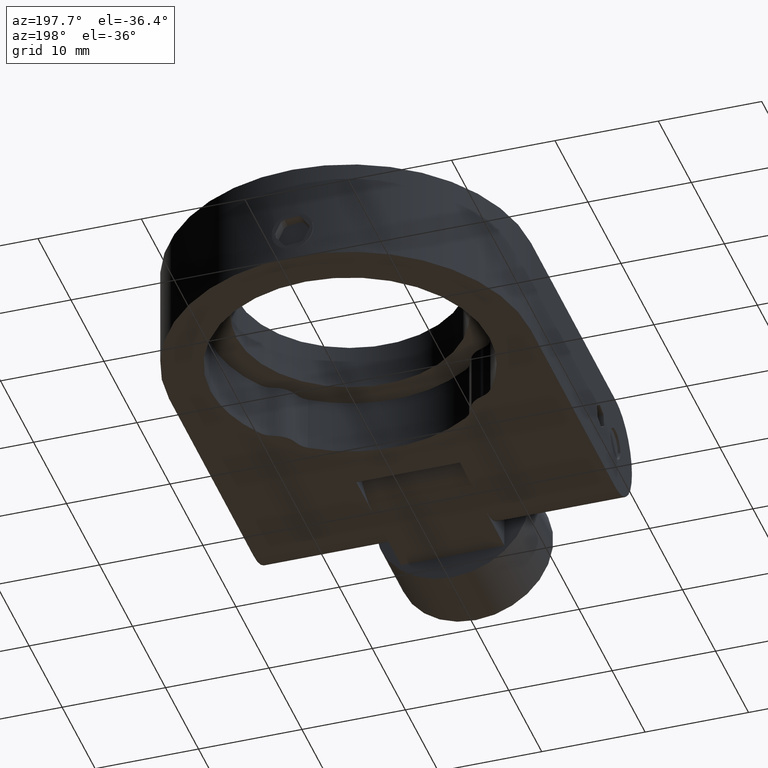
[diagram: clean part render]
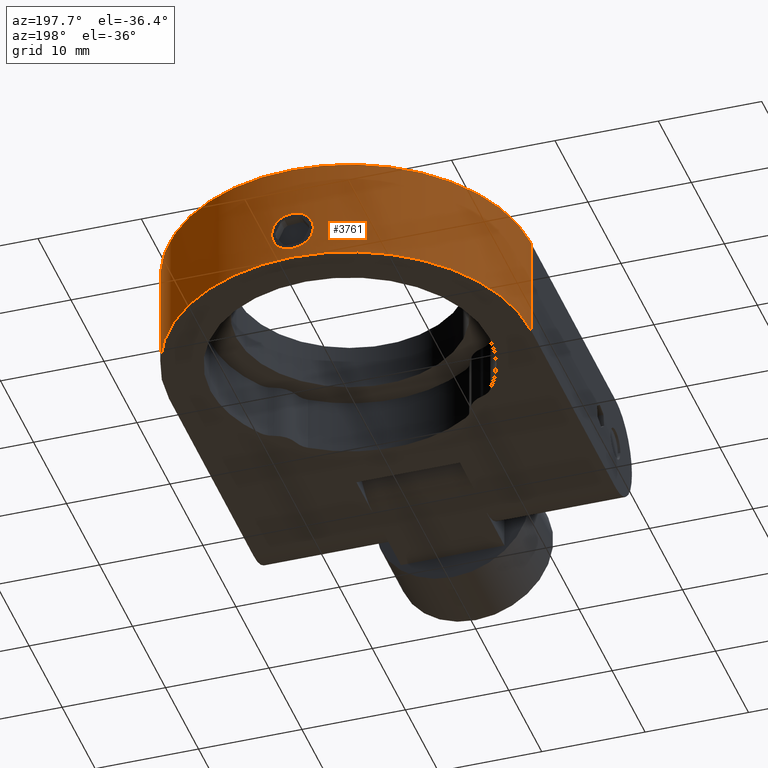
[diagram: same view with one face highlighted and labeled with its STEP entity id]
A machine part, auxiliary view. The second image highlights one B-rep face of the part: STEP entity #3761.
In plain terms, the highlighted cylindrical surface (partial cylindrical patch) has radius 17.5 mm, axis along (0, 0, 1).
Its self-contained STEP definition (entity closure, byte-faithful):
#104 = DIRECTION ( 'NONE',  ( 1.057139645054936500E-016, 1.718301073974566900E-032, 1.000000000000000000 ) ) ;
#177 = CARTESIAN_POINT ( 'NONE',  ( 1.243940680580507300, 55.55590359756332900, -0.9105138064969602300 ) ) ;
#201 = CARTESIAN_POINT ( 'NONE',  ( 1.431577407516354500, 55.54144990789576800, -1.172570826667576700 ) ) ;
#227 = CARTESIAN_POINT ( 'NONE',  ( 1.565948766116068900, 55.52984588805181000, -1.468963886583088700 ) ) ;
#346 = DIRECTION ( 'NONE',  ( -1.000000000000000000, 0.0000000000000000000, 9.912705577010326800E-017 ) ) ;
#372 = CARTESIAN_POINT ( 'NONE',  ( -17.50000000000000400, 38.09999999999999400, -4.999999999999995600 ) ) ;
#381 = CARTESIAN_POINT ( 'NONE',  ( -1.432690255232459000, 55.54135870572000000, -2.825537022005723200 ) ) ;
#385 = FACE_OUTER_BOUND ( 'NONE', #818, .T. ) ;
#468 = CARTESIAN_POINT ( 'NONE',  ( 0.5321469564195295800, 55.59219292581686000, -3.565572322129871600 ) ) ;
#508 = CARTESIAN_POINT ( 'NONE',  ( 1.319065241507898900, 55.55088275981698600, -3.014328555902511000 ) ) ;
#665 = EDGE_CURVE ( 'NONE', #2360, #3286, #1027, .T. ) ;
#727 = CARTESIAN_POINT ( 'NONE',  ( -1.565211479505585600, 55.52991237601676000, -1.466807180366233900 ) ) ;
#742 = CARTESIAN_POINT ( 'NONE',  ( -3.527898732679044000E-015, 55.59999999999999400, -0.3500000000000045300 ) ) ;
#781 = CARTESIAN_POINT ( 'NONE',  ( 0.8279081968503302400, 55.58063414402600700, -0.5687009139404403100 ) ) ;
#818 = EDGE_LOOP ( 'NONE', ( #2225, #3639, #3464, #3184 ) ) ;
#824 = CARTESIAN_POINT ( 'NONE',  ( 1.006036376957947500, 55.57128937560582200, -3.312256107920835500 ) ) ;
#953 = EDGE_CURVE ( 'NONE', #2360, #1501, #1339, .T. ) ;
#973 = EDGE_CURVE ( 'NONE', #1501, #1637, #1158, .T. ) ;
#989 = CARTESIAN_POINT ( 'NONE',  ( -1.013720085198445400, 55.57128044949460800, -0.6804776492782279600 ) ) ;
#1027 = LINE ( 'NONE', #372, #3676 ) ;
#1031 = CARTESIAN_POINT ( 'NONE',  ( -1.649915037179527700, 55.52204868485010500, -1.889745918019462700 ) ) ;
#1158 = LINE ( 'NONE', #1392, #1702 ) ;
#1262 = CARTESIAN_POINT ( 'NONE',  ( -1.939612815733919400E-015, 38.09999999999999400, 5.000000000000002700 ) ) ;
#1265 = CARTESIAN_POINT ( 'NONE',  ( -1.597660903955364000, 55.52693087969993300, -2.426076086375163600 ) ) ;
#1281 = CARTESIAN_POINT ( 'NONE',  ( -1.313145395344434800, 55.55076628803786300, -3.004869102334144500 ) ) ;
#1316 = ORIENTED_EDGE ( 'NONE', *, *, #2930, .T. ) ;
#1339 = CIRCLE ( 'NONE', #2763, 17.50000000000000000 ) ;
#1348 = CARTESIAN_POINT ( 'NONE',  ( -0.2181180835376129200, 55.60000000000000100, -3.649999999999990100 ) ) ;
#1392 = CARTESIAN_POINT ( 'NONE',  ( 17.49999999999999600, 38.09999999999999400, -4.999999999999999100 ) ) ;
#1438 = ORIENTED_EDGE ( 'NONE', *, *, #1530, .T. ) ;
#1501 = VERTEX_POINT ( 'NONE', #2860 ) ;
#1518 = VERTEX_POINT ( 'NONE', #1693 ) ;
#1526 = CARTESIAN_POINT ( 'NONE',  ( -2.996752460788856200E-015, 38.09999999999999400, -4.999999999999997300 ) ) ;
#1530 = EDGE_CURVE ( 'NONE', #1518, #3043, #2671, .T. ) ;
#1637 = VERTEX_POINT ( 'NONE', #2988 ) ;
#1649 = AXIS2_PLACEMENT_3D ( 'NONE', #1526, #2717, #3625 ) ;
#1654 = CARTESIAN_POINT ( 'NONE',  ( 0.5315551709051781200, 55.59221109948015300, -0.4342254221983260500 ) ) ;
#1664 = CARTESIAN_POINT ( 'NONE',  ( 1.090893303509632700, 55.56613186576855400, -3.242588299891080000 ) ) ;
#1693 = CARTESIAN_POINT ( 'NONE',  ( -5.705801625320627200E-015, 55.59999999999999400, -3.649999999999990100 ) ) ;
#1702 = VECTOR ( 'NONE', #1959, 1000.000000000000000 ) ;
#1822 = EDGE_CURVE ( 'NONE', #3286, #1637, #3080, .T. ) ;
#1884 = CARTESIAN_POINT ( 'NONE',  ( -1.639141912024452600, 55.52307838616436400, -1.782565714130203600 ) ) ;
#1926 = CARTESIAN_POINT ( 'NONE',  ( 1.089897451531314500, 55.56619828037494800, -0.7564196335650896800 ) ) ;
#1957 = CARTESIAN_POINT ( 'NONE',  ( 0.1090845190131780100, 55.60000000000000900, -3.649999999999990100 ) ) ;
#1959 = DIRECTION ( 'NONE',  ( 1.057139645054936500E-016, 1.718301073974566900E-032, 1.000000000000000000 ) ) ;
#1985 = CARTESIAN_POINT ( 'NONE',  ( 1.639293849687780500, 55.52306413595979300, -1.783524912386213100 ) ) ;
#2099 = DIRECTION ( 'NONE',  ( -1.057139645054936500E-016, -1.718301073974566900E-032, -1.000000000000000000 ) ) ;
#2138 = CARTESIAN_POINT ( 'NONE',  ( -1.650083971521573400, 55.52203268548552700, -2.107696236852010700 ) ) ;
#2158 = CARTESIAN_POINT ( 'NONE',  ( -1.431557207365659300, 55.54145225371723200, -1.172494226316127100 ) ) ;
#2225 = ORIENTED_EDGE ( 'NONE', *, *, #1822, .T. ) ;
#2252 = CARTESIAN_POINT ( 'NONE',  ( -3.527898732679044000E-015, 55.59999999999999400, -0.3500000000000045300 ) ) ;
#2255 = B_SPLINE_CURVE_WITH_KNOTS ( 'NONE', 3,
 ( #742, #3093, #2470, #3412, #989, #3066, #3391, #2158, #3710, #727, #3054, #1884, #1031, #2138, #3044, #1265, #3363, #2432, #381, #1281, #3666, #2461, #2773, #2519, #1348, #3480 ),
 .UNSPECIFIED., .F., .F.,
 ( 4, 2, 2, 2, 2, 2, 2, 2, 2, 2, 2, 2, 4 ),
 ( 0.005161517069969656800, 0.005806556016394518600, 0.006451594962819381200, 0.006774114436031812600, 0.007096633909244243000, 0.007419153382456673500, 0.007741672855669104800, 0.008064192328881536100, 0.008386711802093967500, 0.008709231275306400500, 0.009031750748518831800, 0.009676789694943692700, 0.01032182864136855500 ),
 .UNSPECIFIED. ) ;
#2266 = CARTESIAN_POINT ( 'NONE',  ( 0.7319538721802679700, 55.58497175480203400, -3.482713933314852500 ) ) ;
#2270 = DIRECTION ( 'NONE',  ( -1.057139645054936500E-016, -1.718301073974566900E-032, -1.000000000000000000 ) ) ;
#2282 = CARTESIAN_POINT ( 'NONE',  ( 1.483241079144064200, 55.53707885858397500, -1.269116429933650600 ) ) ;
#2360 = VERTEX_POINT ( 'NONE', #3319 ) ;
#2432 = CARTESIAN_POINT ( 'NONE',  ( -1.483306548592902700, 55.53707329836148400, -2.730756370299292100 ) ) ;
#2461 = CARTESIAN_POINT ( 'NONE',  ( -1.015503353934396900, 55.57117544664302500, -3.318160825342012700 ) ) ;
#2469 = AXIS2_PLACEMENT_3D ( 'NONE', #1262, #2099, #346 ) ;
#2470 = CARTESIAN_POINT ( 'NONE',  ( -0.4325380471093160900, 55.59578216589525800, -0.3932642807110042200 ) ) ;
#2519 = CARTESIAN_POINT ( 'NONE',  ( -0.4348180556215017800, 55.59572395992190500, -3.606115194177698800 ) ) ;
#2523 = CARTESIAN_POINT ( 'NONE',  ( 1.006570744557258000, 55.57125689227602500, -0.6881827900319563700 ) ) ;
#2526 = FACE_BOUND ( 'NONE', #3258, .T. ) ;
#2555 = DIRECTION ( 'NONE',  ( -1.000000000000000000, 0.0000000000000000000, 9.912705577010326800E-017 ) ) ;
#2578 = CARTESIAN_POINT ( 'NONE',  ( 0.4286877478790487900, 55.59506844082742600, -0.4030148585174810900 ) ) ;
#2671 = B_SPLINE_CURVE_WITH_KNOTS ( 'NONE', 3,
 ( #3786, #1957, #3483, #3493, #468, #2266, #2892, #824, #1664, #508, #3749, #3179, #3802, #3191, #1985, #2843, #227, #2282, #201, #3758, #177, #1926, #2523, #781, #3162, #1654, #2578, #2874, #2833, #2252 ),
 .UNSPECIFIED., .F., .F.,
 ( 4, 2, 2, 2, 2, 2, 2, 2, 2, 2, 2, 2, 2, 2, 4 ),
 ( 7.063985980601647900E-021, 0.0003225948168731046900, 0.0006451896337462093800, 0.0009677844506193140700, 0.001290379267492418500, 0.001935568901238626000, 0.002580758534984833200, 0.002903353351857936500, 0.003225948168731039300, 0.003548542985604142600, 0.003871137802477245400, 0.004193732619350348300, 0.004516327436223451100, 0.004838922253096554800, 0.005161517069969656800 ),
 .UNSPECIFIED. ) ;
#2717 = DIRECTION ( 'NONE',  ( 1.057139645054936500E-016, 1.718301073974566900E-032, 1.000000000000000000 ) ) ;
#2763 = AXIS2_PLACEMENT_3D ( 'NONE', #3193, #2270, #2555 ) ;
#2773 = CARTESIAN_POINT ( 'NONE',  ( -0.8316656489510112500, 55.58135452050655800, -3.441181809078170500 ) ) ;
#2830 = CARTESIAN_POINT ( 'NONE',  ( -3.527898732679044000E-015, 55.59999999999999400, -0.3500000000000045300 ) ) ;
#2833 = CARTESIAN_POINT ( 'NONE',  ( 0.1077170777941826300, 55.59999999999999400, -0.3500000000000044200 ) ) ;
#2843 = CARTESIAN_POINT ( 'NONE',  ( 1.597133255532377600, 55.52697947366280600, -1.571851482246954500 ) ) ;
#2860 = CARTESIAN_POINT ( 'NONE',  ( 17.49999999999999600, 38.09999999999999400, -4.999999999999999100 ) ) ;
#2874 = CARTESIAN_POINT ( 'NONE',  ( 0.2171304411272194600, 55.59897275002032300, -0.3607961997257777600 ) ) ;
#2892 = CARTESIAN_POINT ( 'NONE',  ( 0.8267094926511366900, 55.58069257931959600, -3.432018400474906800 ) ) ;
#2930 = EDGE_CURVE ( 'NONE', #3043, #1518, #2255, .T. ) ;
#2988 = CARTESIAN_POINT ( 'NONE',  ( 17.49999999999999600, 38.09999999999999400, 5.000000000000000900 ) ) ;
#3043 = VERTEX_POINT ( 'NONE', #2830 ) ;
#3044 = CARTESIAN_POINT ( 'NONE',  ( -1.639445297957021100, 55.52304965741857500, -2.215128590417137800 ) ) ;
#3054 = CARTESIAN_POINT ( 'NONE',  ( -1.597054405986774200, 55.52698665525688400, -1.571653060306111600 ) ) ;
#3066 = CARTESIAN_POINT ( 'NONE',  ( -1.242024176549120000, 55.55603601004175800, -0.9084676568398274400 ) ) ;
#3080 = CIRCLE ( 'NONE', #2469, 17.50000000000000000 ) ;
#3093 = CARTESIAN_POINT ( 'NONE',  ( -0.2153838398453226400, 55.60000000000000900, -0.3500000000000045300 ) ) ;
#3116 = CARTESIAN_POINT ( 'NONE',  ( -17.50000000000000400, 38.09999999999999400, 5.000000000000004400 ) ) ;
#3127 = CYLINDRICAL_SURFACE ( 'NONE', #1649, 17.50000000000000000 ) ;
#3162 = CARTESIAN_POINT ( 'NONE',  ( 0.7314253992292828500, 55.58499405015212600, -0.5170240010140669800 ) ) ;
#3179 = CARTESIAN_POINT ( 'NONE',  ( 1.606555768380448600, 55.52629628530832700, -2.433210753019816200 ) ) ;
#3184 = ORIENTED_EDGE ( 'NONE', *, *, #665, .T. ) ;
#3191 = CARTESIAN_POINT ( 'NONE',  ( 1.650038874172630600, 55.52203695654592500, -1.892911970868019300 ) ) ;
#3193 = CARTESIAN_POINT ( 'NONE',  ( -2.996752460788856200E-015, 38.09999999999999400, -4.999999999999997300 ) ) ;
#3258 = EDGE_LOOP ( 'NONE', ( #1438, #1316 ) ) ;
#3286 = VERTEX_POINT ( 'NONE', #3116 ) ;
#3319 = CARTESIAN_POINT ( 'NONE',  ( -17.50000000000000400, 38.09999999999999400, -4.999999999999995600 ) ) ;
#3363 = CARTESIAN_POINT ( 'NONE',  ( -1.566021650540456700, 55.52983934864486300, -2.530828955380290100 ) ) ;
#3391 = CARTESIAN_POINT ( 'NONE',  ( -1.311714603639930300, 55.55087440660942400, -0.9932593968462136700 ) ) ;
#3412 = CARTESIAN_POINT ( 'NONE',  ( -0.8296849130872163700, 55.58145033181318000, -0.5576714040026357100 ) ) ;
#3464 = ORIENTED_EDGE ( 'NONE', *, *, #953, .F. ) ;
#3480 = CARTESIAN_POINT ( 'NONE',  ( -5.705801625320627200E-015, 55.59999999999999400, -3.649999999999990100 ) ) ;
#3483 = CARTESIAN_POINT ( 'NONE',  ( 0.2163338902172029000, 55.59898087854698200, -3.639288906563309800 ) ) ;
#3493 = CARTESIAN_POINT ( 'NONE',  ( 0.4273161170325204300, 55.59510025909921200, -3.597331965297848800 ) ) ;
#3625 = DIRECTION ( 'NONE',  ( 1.000000000000000000, 0.0000000000000000000, -9.912705577010326800E-017 ) ) ;
#3639 = ORIENTED_EDGE ( 'NONE', *, *, #973, .F. ) ;
#3666 = CARTESIAN_POINT ( 'NONE',  ( -1.243558615792936400, 55.55592640355692400, -3.089787008968601300 ) ) ;
#3676 = VECTOR ( 'NONE', #104, 1000.000000000000000 ) ;
#3710 = CARTESIAN_POINT ( 'NONE',  ( -1.482283146985450500, 55.53716057973204600, -1.267184722697474200 ) ) ;
#3749 = CARTESIAN_POINT ( 'NONE',  ( 1.441972753288453400, 55.54068628922156100, -2.830305710098519600 ) ) ;
#3758 = CARTESIAN_POINT ( 'NONE',  ( 1.312133538753544000, 55.55084222436917000, -0.9938397309220926600 ) ) ;
#3761 = ADVANCED_FACE ( 'NONE', ( #2526, #385 ), #3127, .T. ) ;
#3786 = CARTESIAN_POINT ( 'NONE',  ( -5.705801625320627200E-015, 55.59999999999999400, -3.649999999999990100 ) ) ;
#3802 = CARTESIAN_POINT ( 'NONE',  ( 1.649921927317597600, 55.52204803230347400, -2.215967967100911400 ) ) ;